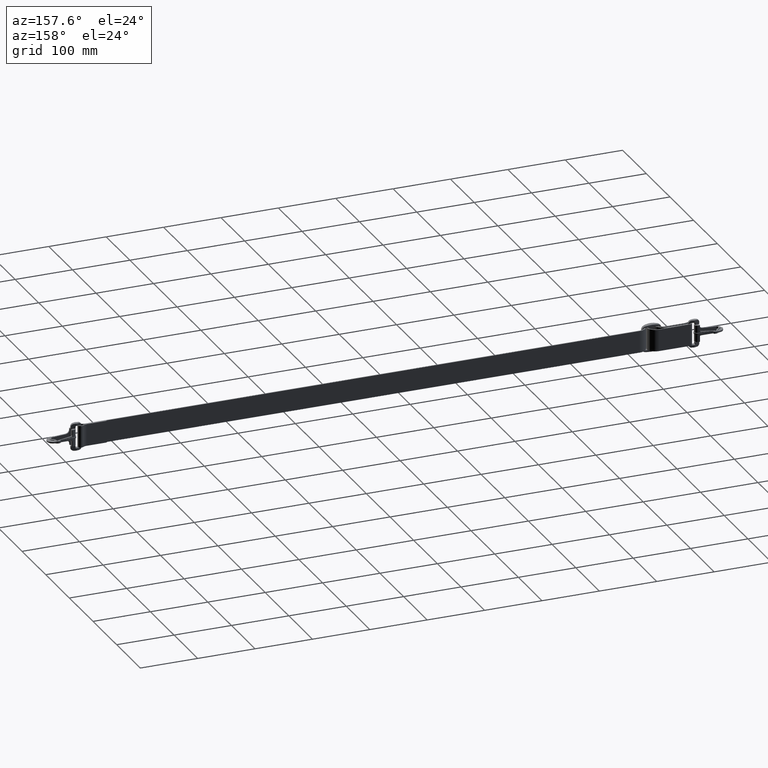
[diagram: clean part render]
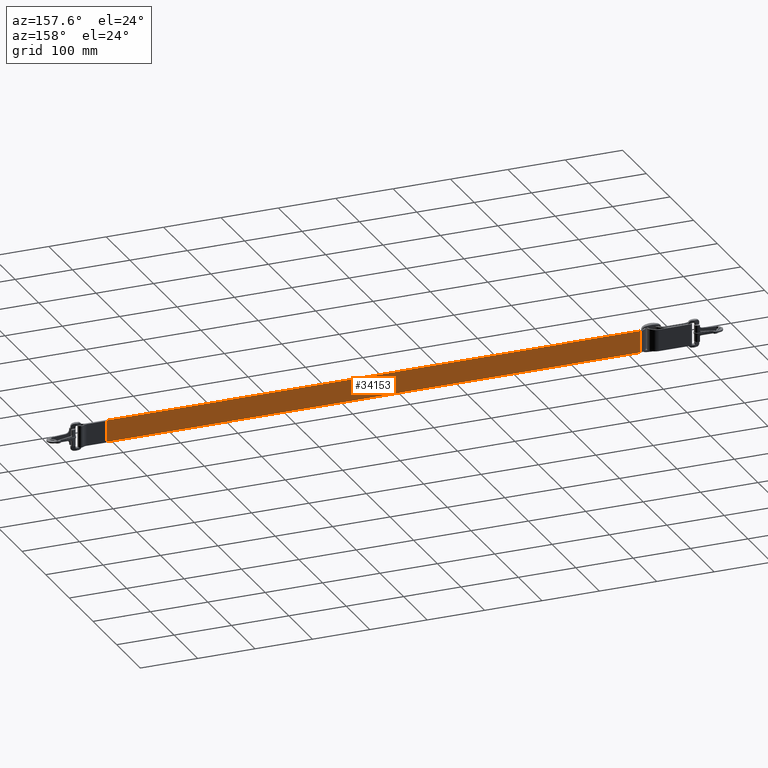
[diagram: same view with one face highlighted and labeled with its STEP entity id]
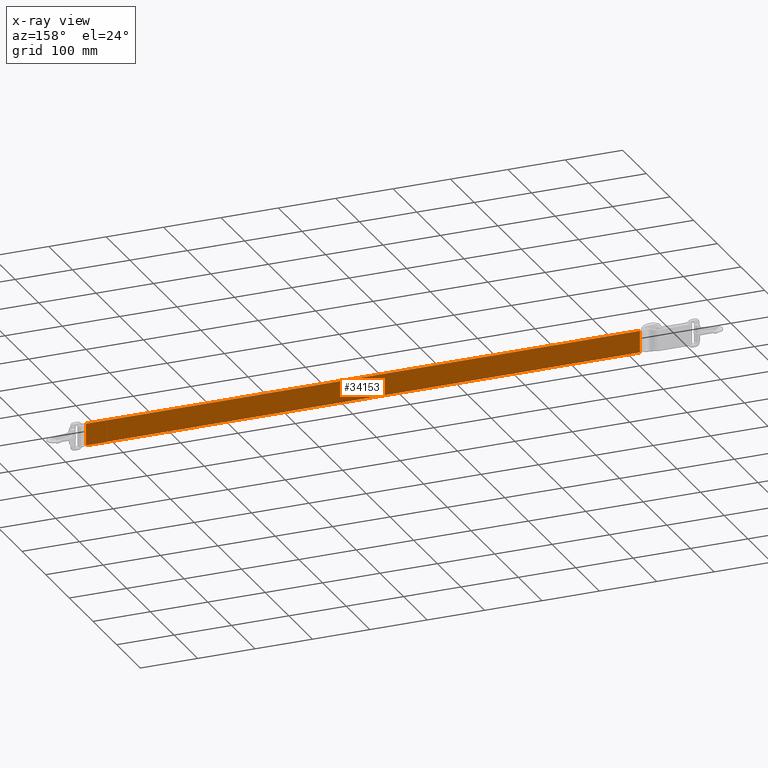
[diagram: x-ray of the same camera — body ghosted, the highlighted face saturated]
A machine part, auxiliary view. The second image highlights one B-rep face of the part: STEP entity #34153.
The next image is the same camera in x-ray: the body ghosted, the highlighted face saturated — about 0% of this face is hidden behind the body in this view.
In plain terms, the highlighted face is a freeform B-spline surface patch.
Its self-contained STEP definition (entity closure, byte-faithful):
#33059=CARTESIAN_POINT('',(99.073498568197195,-1.399999999999976,-19.000000000305349));
#33060=VERTEX_POINT('',#33059);
#33074=CARTESIAN_POINT('',(1064.293536963791900,-1.399999999999988,-19.000000000305349));
#33075=VERTEX_POINT('',#33074);
#33076=CARTESIAN_POINT('',(1064.293536963791900,-1.399999999999988,-19.000000000305349));
#33077=CARTESIAN_POINT('',(99.073498568197195,-1.399999999999976,-19.000000000305349));
#33078=QUASI_UNIFORM_CURVE('',1,(#33076,#33077),.UNSPECIFIED.,.F.,.U.);
#33079=EDGE_CURVE('',#33075,#33060,#33078,.T.);
#33427=CARTESIAN_POINT('',(1064.293536963791900,-1.399999999999988,19.000000000305349));
#33428=VERTEX_POINT('',#33427);
#33442=CARTESIAN_POINT('',(99.073498568197195,-1.399999999999976,19.000000000305349));
#33443=VERTEX_POINT('',#33442);
#33444=CARTESIAN_POINT('',(1064.293536963791900,-1.399999999999988,19.000000000305349));
#33445=CARTESIAN_POINT('',(99.073498568197195,-1.399999999999976,19.000000000305349));
#33446=QUASI_UNIFORM_CURVE('',1,(#33444,#33445),.UNSPECIFIED.,.F.,.U.);
#33447=EDGE_CURVE('',#33428,#33443,#33446,.T.);
#34130=CARTESIAN_POINT('',(99.073498568197195,-1.399999999999976,19.000000000305349));
#34131=CARTESIAN_POINT('',(99.073498568197195,-1.399999999999976,-19.000000000305349));
#34132=QUASI_UNIFORM_CURVE('',1,(#34130,#34131),.UNSPECIFIED.,.F.,.U.);
#34133=EDGE_CURVE('',#33443,#33060,#34132,.T.);
#34138=CARTESIAN_POINT('',(50.860759521120983,-1.399999999998214,-20.898099926684480));
#34139=CARTESIAN_POINT('',(1112.506301900087900,-1.399999999998214,-20.898099926684480));
#34140=CARTESIAN_POINT('',(50.860759521120983,-1.399999999998214,20.898100945923900));
#34141=CARTESIAN_POINT('',(1112.506301900087900,-1.399999999998214,20.898100945923900));
#34142=B_SPLINE_SURFACE_WITH_KNOTS('',1,1,((#34138,#34140),(#34139,#34141)),.UNSPECIFIED.,.F.,.F.,.U.,(2,2),(2,2),(0.0,1061.645542378966000),(0.0,41.796200872608381),.UNSPECIFIED.);
#34143=ORIENTED_EDGE('',*,*,#33079,.T.);
#34144=ORIENTED_EDGE('',*,*,#34133,.F.);
#34145=ORIENTED_EDGE('',*,*,#33447,.F.);
#34146=CARTESIAN_POINT('',(1064.293536963791900,-1.399999999999988,19.000000000305349));
#34147=CARTESIAN_POINT('',(1064.293536963791900,-1.399999999999988,-19.000000000305349));
#34148=QUASI_UNIFORM_CURVE('',1,(#34146,#34147),.UNSPECIFIED.,.F.,.U.);
#34149=EDGE_CURVE('',#33428,#33075,#34148,.T.);
#34150=ORIENTED_EDGE('',*,*,#34149,.T.);
#34151=EDGE_LOOP('',(#34143,#34144,#34145,#34150));
#34152=FACE_OUTER_BOUND('',#34151,.T.);
#34153=ADVANCED_FACE('',(#34152),#34142,.F.);